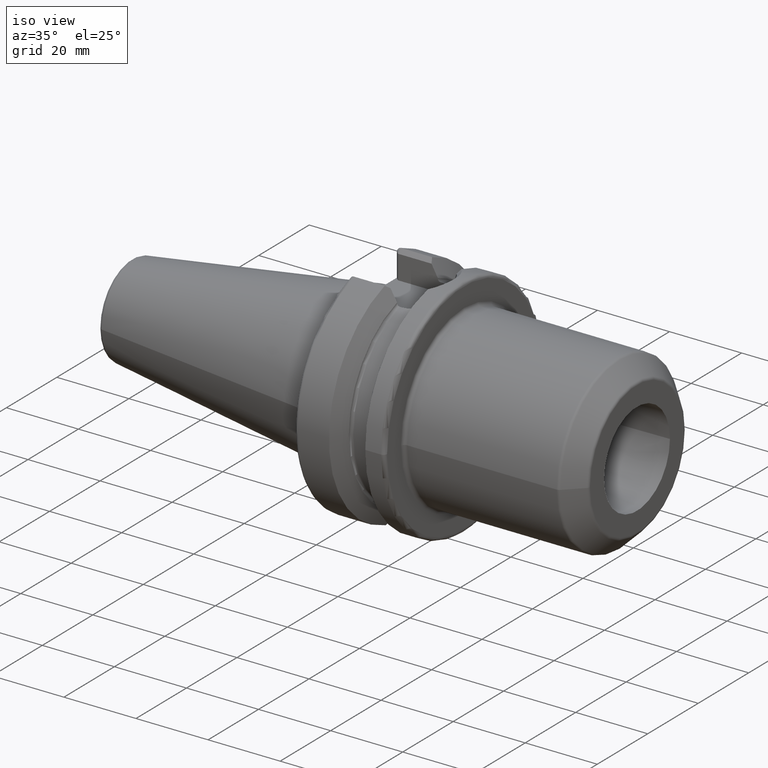
[diagram: clean part render]
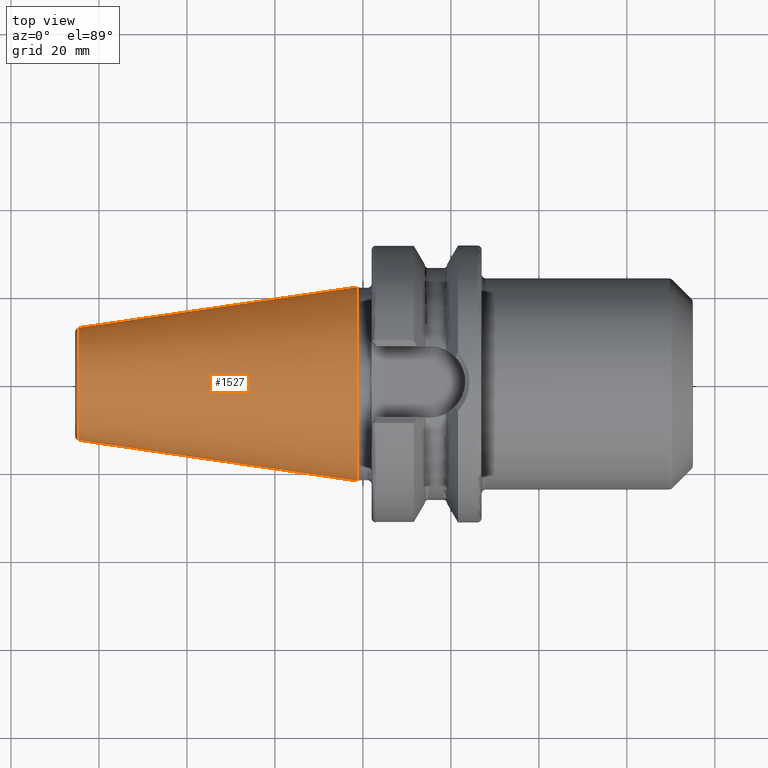
[diagram: tour spotlight — one face highlighted and labeled with its STEP entity id]
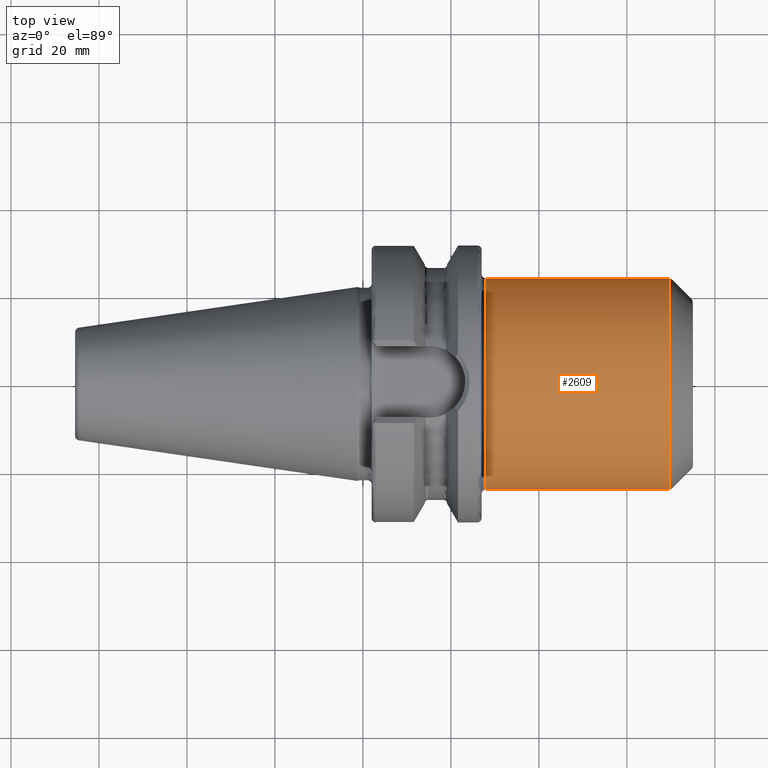
[diagram: tour spotlight — one face highlighted and labeled with its STEP entity id]
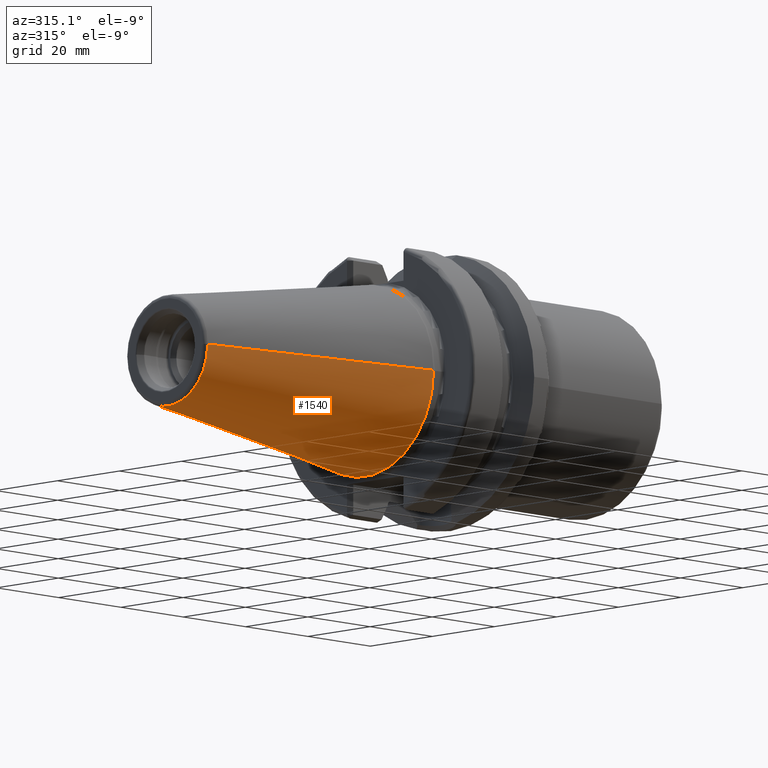
[diagram: tour spotlight — one face highlighted and labeled with its STEP entity id]
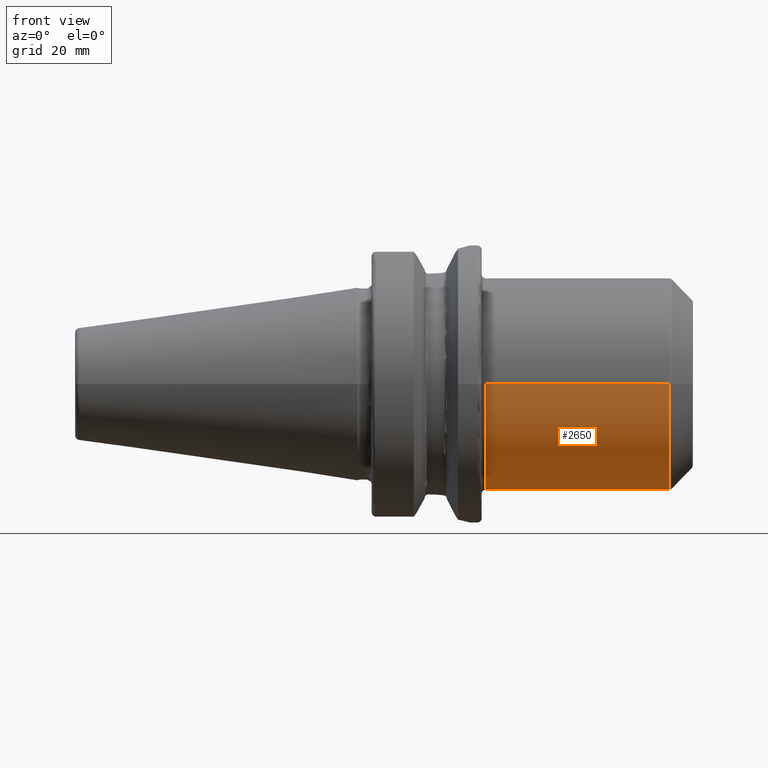
[diagram: tour spotlight — one face highlighted and labeled with its STEP entity id]
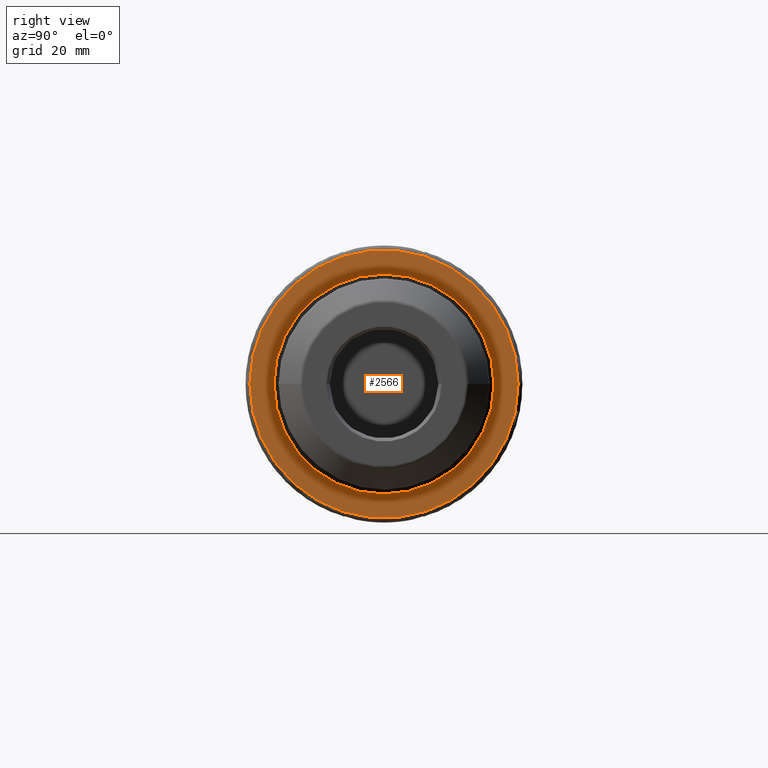
[diagram: tour spotlight — one face highlighted and labeled with its STEP entity id]
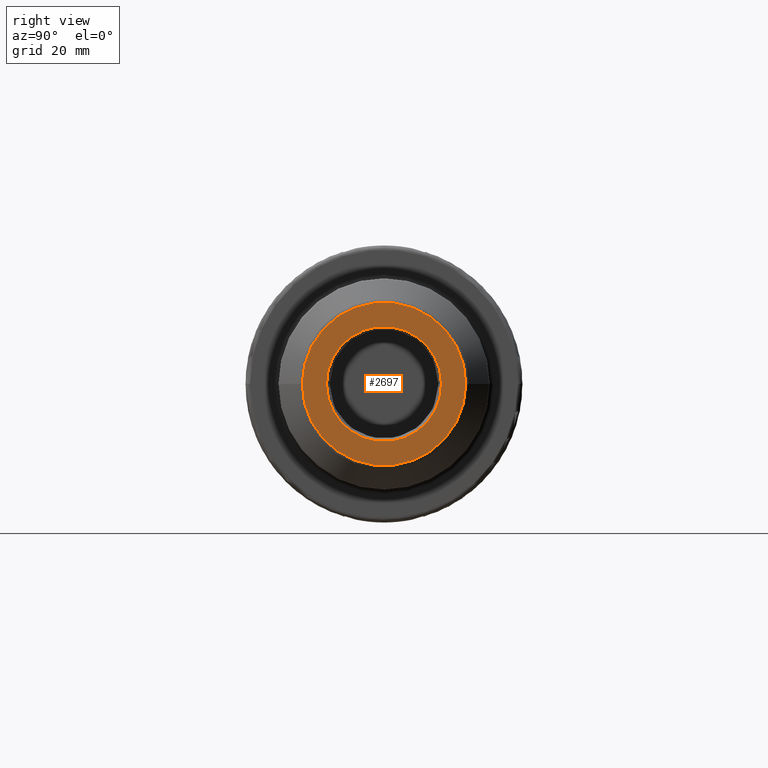
[diagram: tour spotlight — one face highlighted and labeled with its STEP entity id]
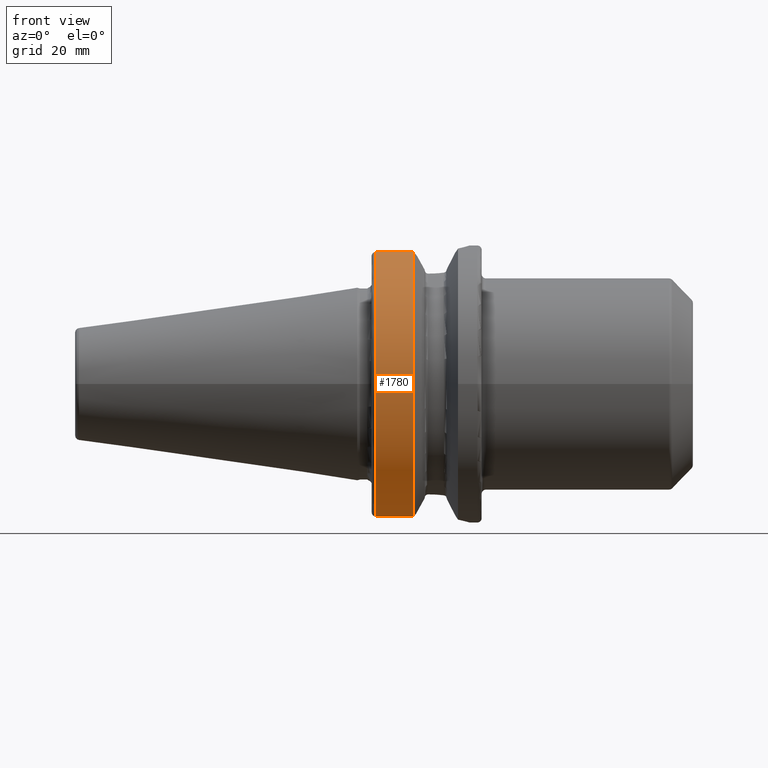
[diagram: tour spotlight — one face highlighted and labeled with its STEP entity id]
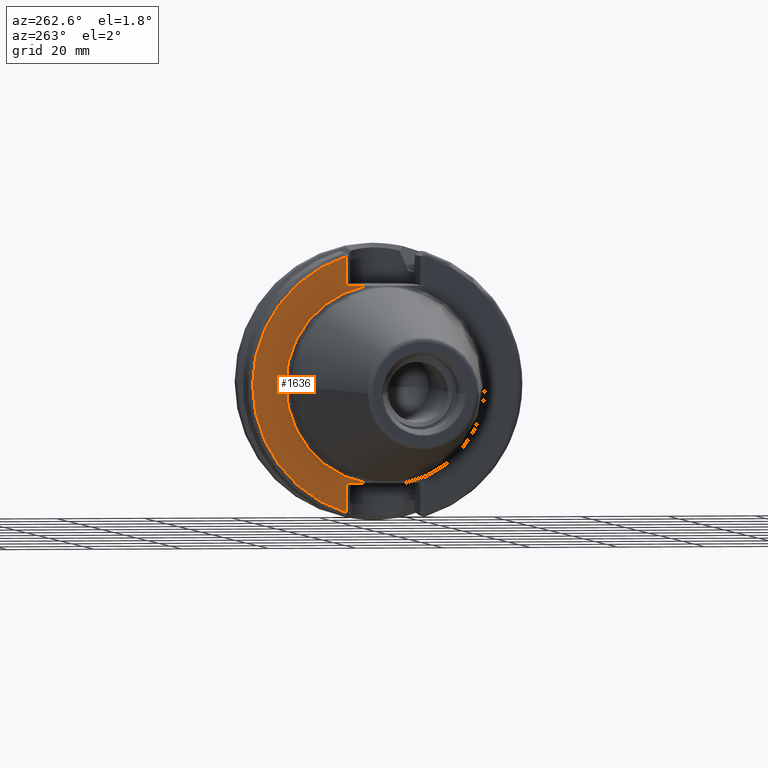
[diagram: tour spotlight — one face highlighted and labeled with its STEP entity id]
A machine part: a face-by-face anatomy tour. The part has 100 B-rep faces; the first image is the clean iso view, then the 8 largest visible faces are spotlighted one at a time (largest first), each with its STEP entity span.

Face 1 — top view, entity #1527. In plain terms, the highlighted conical surface has half-angle 8.298 deg.
Definition (entity closure, byte-faithful):
#37=CARTESIAN_POINT('',(-6.454431866917E1,0.E0,0.E0));
#38=DIRECTION('',(1.E0,0.E0,0.E0));
#39=DIRECTION('',(0.E0,1.E0,0.E0));
#40=AXIS2_PLACEMENT_3D('',#37,#38,#39);
#42=CARTESIAN_POINT('',(-1.266732031557E0,0.E0,0.E0));
#43=DIRECTION('',(1.E0,0.E0,0.E0));
#44=DIRECTION('',(0.E0,1.E0,0.E0));
#45=AXIS2_PLACEMENT_3D('',#42,#43,#44);
#47=DIRECTION('',(-9.895312636440E-1,-1.443186691705E-1,0.E0));
#48=VECTOR('',#47,6.394703124850E1);
#49=CARTESIAN_POINT('',(-1.266732031557E0,2.204025284980E1,0.E0));
#50=LINE('',#49,#48);
#51=DIRECTION('',(-9.895312636440E-1,1.443186691705E-1,0.E0));
#52=VECTOR('',#51,6.394703124850E1);
#53=CARTESIAN_POINT('',(-1.266732031557E0,-2.204025284980E1,0.E0));
#54=LINE('',#53,#52);
#1208=CARTESIAN_POINT('',(-6.454431866917E1,1.281150240261E1,0.E0));
#1210=VERTEX_POINT('',#1208);
#1212=CARTESIAN_POINT('',(-6.454431866917E1,-1.281150240261E1,0.E0));
#1214=VERTEX_POINT('',#1212);
#1427=CARTESIAN_POINT('',(-1.266732031557E0,2.204025284980E1,0.E0));
#1428=VERTEX_POINT('',#1427);
#1429=CARTESIAN_POINT('',(-1.266732031557E0,-2.204025284980E1,0.E0));
#1430=VERTEX_POINT('',#1429);
#1513=CARTESIAN_POINT('',(-3.290552535036E1,0.E0,0.E0));
#1514=DIRECTION('',(1.E0,0.E0,0.E0));
#1515=DIRECTION('',(0.E0,-1.E0,0.E0));
#1516=AXIS2_PLACEMENT_3D('',#1513,#1514,#1515);
#1517=CONICAL_SURFACE('',#1516,1.742587762621E1,8.297826828206E0);
#1519=ORIENTED_EDGE('',*,*,#1518,.F.);
#1521=ORIENTED_EDGE('',*,*,#1520,.T.);
#1523=ORIENTED_EDGE('',*,*,#1522,.T.);
#1524=ORIENTED_EDGE('',*,*,#1506,.F.);
#1525=EDGE_LOOP('',(#1519,#1521,#1523,#1524));
#1526=FACE_OUTER_BOUND('',#1525,.F.);
#1527=ADVANCED_FACE('',(#1526),#1517,.T.);
#41=CIRCLE('',#40,1.281150240261E1);
#46=CIRCLE('',#45,2.204025284980E1);
#1506=EDGE_CURVE('',#1210,#1214,#41,.T.);
#1518=EDGE_CURVE('',#1428,#1210,#50,.T.);
#1520=EDGE_CURVE('',#1428,#1430,#46,.T.);
#1522=EDGE_CURVE('',#1430,#1214,#54,.T.);

Face 2 — top view, entity #2609. In plain terms, the highlighted cylindrical surface (partial cylindrical patch) has radius 24 mm, axis along (1, 0, 0).
Definition (entity closure, byte-faithful):
#856=CARTESIAN_POINT('',(6.958578643763E1,0.E0,0.E0));
#857=DIRECTION('',(-1.E0,0.E0,0.E0));
#858=DIRECTION('',(0.E0,-1.E0,0.E0));
#859=AXIS2_PLACEMENT_3D('',#856,#857,#858);
#861=CARTESIAN_POINT('',(2.8E1,0.E0,0.E0));
#862=DIRECTION('',(1.E0,0.E0,0.E0));
#863=DIRECTION('',(0.E0,1.E0,0.E0));
#864=AXIS2_PLACEMENT_3D('',#861,#862,#863);
#881=DIRECTION('',(-1.E0,0.E0,5.174014328678E-13));
#882=VECTOR('',#881,4.158578643763E1);
#883=CARTESIAN_POINT('',(6.958578643763E1,2.4E1,-2.018824837688E-11));
#884=LINE('',#883,#882);
#890=DIRECTION('',(-1.E0,0.E0,-5.172645071689E-13));
#891=VECTOR('',#890,4.158578643763E1);
#892=CARTESIAN_POINT('',(6.958578643763E1,-2.4E1,2.018180394298E-11));
#893=LINE('',#892,#891);
#1447=CARTESIAN_POINT('',(2.8E1,-2.4E1,0.E0));
#1448=CARTESIAN_POINT('',(2.8E1,2.4E1,0.E0));
#1449=VERTEX_POINT('',#1447);
#1450=VERTEX_POINT('',#1448);
#1459=CARTESIAN_POINT('',(6.958578643763E1,2.4E1,0.E0));
#1460=CARTESIAN_POINT('',(6.958578643763E1,-2.4E1,0.E0));
#1461=VERTEX_POINT('',#1459);
#1462=VERTEX_POINT('',#1460);
#2595=CARTESIAN_POINT('',(2.46E1,0.E0,0.E0));
#2596=DIRECTION('',(1.E0,0.E0,0.E0));
#2597=DIRECTION('',(0.E0,-1.E0,0.E0));
#2598=AXIS2_PLACEMENT_3D('',#2595,#2596,#2597);
#2599=CYLINDRICAL_SURFACE('',#2598,2.4E1);
#2601=ORIENTED_EDGE('',*,*,#2600,.F.);
#2603=ORIENTED_EDGE('',*,*,#2602,.T.);
#2604=ORIENTED_EDGE('',*,*,#2589,.F.);
#2606=ORIENTED_EDGE('',*,*,#2605,.F.);
#2607=EDGE_LOOP('',(#2601,#2603,#2604,#2606));
#2608=FACE_OUTER_BOUND('',#2607,.F.);
#2609=ADVANCED_FACE('',(#2608),#2599,.T.);
#860=CIRCLE('',#859,2.4E1);
#865=CIRCLE('',#864,2.4E1);
#2589=EDGE_CURVE('',#1450,#1449,#865,.T.);
#2600=EDGE_CURVE('',#1462,#1461,#860,.T.);
#2602=EDGE_CURVE('',#1462,#1449,#893,.T.);
#2605=EDGE_CURVE('',#1461,#1450,#884,.T.);

Face 3 — auxiliary view, entity #1540. In plain terms, the highlighted conical surface has half-angle 8.298 deg.
Definition (entity closure, byte-faithful):
#32=CARTESIAN_POINT('',(-6.454431866917E1,0.E0,0.E0));
#33=DIRECTION('',(-1.E0,0.E0,0.E0));
#34=DIRECTION('',(0.E0,1.E0,0.E0));
#35=AXIS2_PLACEMENT_3D('',#32,#33,#34);
#47=DIRECTION('',(-9.895312636440E-1,-1.443186691705E-1,0.E0));
#48=VECTOR('',#47,6.394703124850E1);
#49=CARTESIAN_POINT('',(-1.266732031557E0,2.204025284980E1,0.E0));
#50=LINE('',#49,#48);
#51=DIRECTION('',(-9.895312636440E-1,1.443186691705E-1,0.E0));
#52=VECTOR('',#51,6.394703124850E1);
#53=CARTESIAN_POINT('',(-1.266732031557E0,-2.204025284980E1,0.E0));
#54=LINE('',#53,#52);
#55=CARTESIAN_POINT('',(-1.266732031557E0,0.E0,0.E0));
#56=DIRECTION('',(-1.E0,0.E0,0.E0));
#57=DIRECTION('',(0.E0,1.E0,0.E0));
#58=AXIS2_PLACEMENT_3D('',#55,#56,#57);
#1208=CARTESIAN_POINT('',(-6.454431866917E1,1.281150240261E1,0.E0));
#1210=VERTEX_POINT('',#1208);
#1212=CARTESIAN_POINT('',(-6.454431866917E1,-1.281150240261E1,0.E0));
#1214=VERTEX_POINT('',#1212);
#1427=CARTESIAN_POINT('',(-1.266732031557E0,2.204025284980E1,0.E0));
#1428=VERTEX_POINT('',#1427);
#1429=CARTESIAN_POINT('',(-1.266732031557E0,-2.204025284980E1,0.E0));
#1430=VERTEX_POINT('',#1429);
#1528=CARTESIAN_POINT('',(-3.290552535036E1,0.E0,0.E0));
#1529=DIRECTION('',(1.E0,0.E0,0.E0));
#1530=DIRECTION('',(0.E0,-1.E0,0.E0));
#1531=AXIS2_PLACEMENT_3D('',#1528,#1529,#1530);
#1532=CONICAL_SURFACE('',#1531,1.742587762621E1,8.297826828206E0);
#1533=ORIENTED_EDGE('',*,*,#1518,.T.);
#1534=ORIENTED_EDGE('',*,*,#1495,.T.);
#1535=ORIENTED_EDGE('',*,*,#1522,.F.);
#1537=ORIENTED_EDGE('',*,*,#1536,.F.);
#1538=EDGE_LOOP('',(#1533,#1534,#1535,#1537));
#1539=FACE_OUTER_BOUND('',#1538,.F.);
#1540=ADVANCED_FACE('',(#1539),#1532,.T.);
#36=CIRCLE('',#35,1.281150240261E1);
#59=CIRCLE('',#58,2.204025284980E1);
#1495=EDGE_CURVE('',#1210,#1214,#36,.T.);
#1518=EDGE_CURVE('',#1428,#1210,#50,.T.);
#1522=EDGE_CURVE('',#1430,#1214,#54,.T.);
#1536=EDGE_CURVE('',#1428,#1430,#59,.T.);

Face 4 — front view, entity #2650. In plain terms, the highlighted cylindrical surface (partial cylindrical patch) has radius 24 mm, axis along (1, 0, 0).
Definition (entity closure, byte-faithful):
#876=CARTESIAN_POINT('',(6.958578643763E1,0.E0,0.E0));
#877=DIRECTION('',(-1.E0,0.E0,0.E0));
#878=DIRECTION('',(0.E0,1.E0,0.E0));
#879=AXIS2_PLACEMENT_3D('',#876,#877,#878);
#881=DIRECTION('',(-1.E0,0.E0,5.174014328678E-13));
#882=VECTOR('',#881,4.158578643763E1);
#883=CARTESIAN_POINT('',(6.958578643763E1,2.4E1,-2.018824837688E-11));
#884=LINE('',#883,#882);
#885=CARTESIAN_POINT('',(2.8E1,0.E0,0.E0));
#886=DIRECTION('',(1.E0,0.E0,0.E0));
#887=DIRECTION('',(0.E0,-1.E0,0.E0));
#888=AXIS2_PLACEMENT_3D('',#885,#886,#887);
#890=DIRECTION('',(-1.E0,0.E0,-5.172645071689E-13));
#891=VECTOR('',#890,4.158578643763E1);
#892=CARTESIAN_POINT('',(6.958578643763E1,-2.4E1,2.018180394298E-11));
#893=LINE('',#892,#891);
#1447=CARTESIAN_POINT('',(2.8E1,-2.4E1,0.E0));
#1448=CARTESIAN_POINT('',(2.8E1,2.4E1,0.E0));
#1449=VERTEX_POINT('',#1447);
#1450=VERTEX_POINT('',#1448);
#1459=CARTESIAN_POINT('',(6.958578643763E1,2.4E1,0.E0));
#1460=CARTESIAN_POINT('',(6.958578643763E1,-2.4E1,0.E0));
#1461=VERTEX_POINT('',#1459);
#1462=VERTEX_POINT('',#1460);
#2639=CARTESIAN_POINT('',(2.46E1,0.E0,0.E0));
#2640=DIRECTION('',(1.E0,0.E0,0.E0));
#2641=DIRECTION('',(0.E0,-1.E0,0.E0));
#2642=AXIS2_PLACEMENT_3D('',#2639,#2640,#2641);
#2643=CYLINDRICAL_SURFACE('',#2642,2.4E1);
#2644=ORIENTED_EDGE('',*,*,#2630,.F.);
#2645=ORIENTED_EDGE('',*,*,#2605,.T.);
#2646=ORIENTED_EDGE('',*,*,#2575,.F.);
#2647=ORIENTED_EDGE('',*,*,#2602,.F.);
#2648=EDGE_LOOP('',(#2644,#2645,#2646,#2647));
#2649=FACE_OUTER_BOUND('',#2648,.F.);
#2650=ADVANCED_FACE('',(#2649),#2643,.T.);
#880=CIRCLE('',#879,2.4E1);
#889=CIRCLE('',#888,2.4E1);
#2575=EDGE_CURVE('',#1449,#1450,#889,.T.);
#2602=EDGE_CURVE('',#1462,#1449,#893,.T.);
#2605=EDGE_CURVE('',#1461,#1450,#884,.T.);
#2630=EDGE_CURVE('',#1461,#1462,#880,.T.);

Face 5 — right view, entity #2566. In plain terms, the highlighted planar face has unit normal (1, 0, 0).
Definition (entity closure, byte-faithful):
#816=CARTESIAN_POINT('',(2.7E1,0.E0,0.E0));
#817=DIRECTION('',(1.E0,0.E0,0.E0));
#818=DIRECTION('',(0.E0,1.E0,0.E0));
#819=AXIS2_PLACEMENT_3D('',#816,#817,#818);
#831=CARTESIAN_POINT('',(2.7E1,0.E0,0.E0));
#832=DIRECTION('',(-1.E0,0.E0,0.E0));
#833=DIRECTION('',(0.E0,1.E0,0.E0));
#834=AXIS2_PLACEMENT_3D('',#831,#832,#833);
#836=CARTESIAN_POINT('',(2.7E1,0.E0,0.E0));
#837=DIRECTION('',(1.E0,0.E0,0.E0));
#838=DIRECTION('',(0.E0,-1.E0,0.E0));
#839=AXIS2_PLACEMENT_3D('',#836,#837,#838);
#841=CARTESIAN_POINT('',(2.7E1,0.E0,0.E0));
#842=DIRECTION('',(1.E0,0.E0,0.E0));
#843=DIRECTION('',(0.E0,1.E0,0.E0));
#844=AXIS2_PLACEMENT_3D('',#841,#842,#843);
#1342=CARTESIAN_POINT('',(2.7E1,3.04875E1,0.E0));
#1343=VERTEX_POINT('',#1342);
#1344=CARTESIAN_POINT('',(2.7E1,-3.04875E1,0.E0));
#1345=VERTEX_POINT('',#1344);
#1443=CARTESIAN_POINT('',(2.7E1,-2.5E1,-2.832769448824E-14));
#1444=CARTESIAN_POINT('',(2.7E1,2.5E1,1.416384724412E-14));
#1445=VERTEX_POINT('',#1443);
#1446=VERTEX_POINT('',#1444);
#2551=CARTESIAN_POINT('',(2.7E1,0.E0,0.E0));
#2552=DIRECTION('',(1.E0,0.E0,0.E0));
#2553=DIRECTION('',(0.E0,-1.E0,0.E0));
#2554=AXIS2_PLACEMENT_3D('',#2551,#2552,#2553);
#2555=PLANE('',#2554);
#2556=ORIENTED_EDGE('',*,*,#2546,.T.);
#2557=ORIENTED_EDGE('',*,*,#2530,.F.);
#2558=EDGE_LOOP('',(#2556,#2557));
#2559=FACE_OUTER_BOUND('',#2558,.F.);
#2561=ORIENTED_EDGE('',*,*,#2560,.T.);
#2563=ORIENTED_EDGE('',*,*,#2562,.T.);
#2564=EDGE_LOOP('',(#2561,#2563));
#2565=FACE_BOUND('',#2564,.F.);
#2566=ADVANCED_FACE('',(#2559,#2565),#2555,.T.);
#820=CIRCLE('',#819,3.04875E1);
#835=CIRCLE('',#834,3.04875E1);
#840=CIRCLE('',#839,2.5E1);
#845=CIRCLE('',#844,2.5E1);
#2530=EDGE_CURVE('',#1343,#1345,#820,.T.);
#2546=EDGE_CURVE('',#1343,#1345,#835,.T.);
#2560=EDGE_CURVE('',#1445,#1446,#840,.T.);
#2562=EDGE_CURVE('',#1446,#1445,#845,.T.);

Face 6 — right view, entity #2697. In plain terms, the highlighted planar face has unit normal (1, 0, 0).
Definition (entity closure, byte-faithful):
#913=CARTESIAN_POINT('',(7.5E1,0.E0,0.E0));
#914=DIRECTION('',(1.E0,0.E0,0.E0));
#915=DIRECTION('',(0.E0,1.E0,0.E0));
#916=AXIS2_PLACEMENT_3D('',#913,#914,#915);
#918=CARTESIAN_POINT('',(7.5E1,0.E0,0.E0));
#919=DIRECTION('',(1.E0,0.E0,0.E0));
#920=DIRECTION('',(0.E0,-1.E0,0.E0));
#921=AXIS2_PLACEMENT_3D('',#918,#919,#920);
#923=CARTESIAN_POINT('',(7.5E1,0.E0,0.E0));
#924=DIRECTION('',(1.E0,0.E0,0.E0));
#925=DIRECTION('',(0.E0,-1.E0,-3.283921760802E-10));
#926=AXIS2_PLACEMENT_3D('',#923,#924,#925);
#928=CARTESIAN_POINT('',(7.5E1,0.E0,0.E0));
#929=DIRECTION('',(1.E0,0.E0,0.E0));
#930=DIRECTION('',(0.E0,1.E0,3.283917434362E-10));
#931=AXIS2_PLACEMENT_3D('',#928,#929,#930);
#1439=CARTESIAN_POINT('',(7.5E1,1.30735E1,0.E0));
#1440=VERTEX_POINT('',#1439);
#1441=CARTESIAN_POINT('',(7.5E1,-1.30735E1,0.E0));
#1442=VERTEX_POINT('',#1441);
#1451=CARTESIAN_POINT('',(7.5E1,-1.858578643763E1,-6.103426852414E-9));
#1452=CARTESIAN_POINT('',(7.5E1,1.858578643763E1,6.103416322565E-9));
#1453=VERTEX_POINT('',#1451);
#1454=VERTEX_POINT('',#1452);
#2681=CARTESIAN_POINT('',(7.5E1,0.E0,0.E0));
#2682=DIRECTION('',(1.E0,0.E0,0.E0));
#2683=DIRECTION('',(0.E0,-1.E0,0.E0));
#2684=AXIS2_PLACEMENT_3D('',#2681,#2682,#2683);
#2685=PLANE('',#2684);
#2686=ORIENTED_EDGE('',*,*,#2671,.F.);
#2688=ORIENTED_EDGE('',*,*,#2687,.F.);
#2689=EDGE_LOOP('',(#2686,#2688));
#2690=FACE_OUTER_BOUND('',#2689,.F.);
#2692=ORIENTED_EDGE('',*,*,#2691,.T.);
#2694=ORIENTED_EDGE('',*,*,#2693,.T.);
#2695=EDGE_LOOP('',(#2692,#2694));
#2696=FACE_BOUND('',#2695,.F.);
#2697=ADVANCED_FACE('',(#2690,#2696),#2685,.T.);
#917=CIRCLE('',#916,1.30735E1);
#922=CIRCLE('',#921,1.30735E1);
#927=CIRCLE('',#926,1.858578643763E1);
#932=CIRCLE('',#931,1.858578643763E1);
#2671=EDGE_CURVE('',#1453,#1454,#927,.T.);
#2687=EDGE_CURVE('',#1454,#1453,#932,.T.);
#2691=EDGE_CURVE('',#1440,#1442,#917,.T.);
#2693=EDGE_CURVE('',#1442,#1440,#922,.T.);

Face 7 — front view, entity #1780. In plain terms, the highlighted cylindrical surface (partial cylindrical patch) has radius 31.4875 mm, axis along (1, 0, 0).
Definition (entity closure, byte-faithful):
#210=CARTESIAN_POINT('',(1.157272253103E1,0.E0,0.E0));
#211=DIRECTION('',(1.E0,0.E0,0.E0));
#212=DIRECTION('',(0.E0,-2.983189831898E-1,9.544662300305E-1));
#213=AXIS2_PLACEMENT_3D('',#210,#211,#212);
#215=DIRECTION('',(9.999999999998E-1,-3.572441507671E-7,4.802508939409E-7));
#216=VECTOR('',#215,8.572722533299E0);
#217=CARTESIAN_POINT('',(2.999999997734E0,-9.052776400559E0,-3.015808496187E1));
#218=LINE('',#217,#216);
#219=CARTESIAN_POINT('',(3.E0,0.E0,0.E0));
#220=DIRECTION('',(-1.E0,0.E0,0.E0));
#221=DIRECTION('',(0.E0,-2.875039130802E-1,-9.577794631143E-1));
#222=AXIS2_PLACEMENT_3D('',#219,#220,#221);
#224=DIRECTION('',(-9.999999999911E-1,2.496639374553E-6,3.395432034657E-6));
#225=VECTOR('',#224,8.572722551500E0);
#226=CARTESIAN_POINT('',(1.157272253103E1,-9.393318983190E0,3.005375541808E1));
#227=LINE('',#226,#225);
#606=CARTESIAN_POINT('',(2.999999997734E0,-9.052776400559E0,-3.015808496187E1));
#1378=CARTESIAN_POINT('',(1.157272253103E1,-9.393318983190E0,3.005375541808E1));
#1379=CARTESIAN_POINT('',(1.157272253103E1,-9.052779463114E0,
-3.015808084481E1));
#1380=VERTEX_POINT('',#1378);
#1381=VERTEX_POINT('',#1379);
#1394=CARTESIAN_POINT('',(3.E0,-9.393347656107E0,3.005374645633E1));
#1395=VERTEX_POINT('',#1394);
#1416=VERTEX_POINT('',#606);
#1766=CARTESIAN_POINT('',(-7.002E1,0.E0,0.E0));
#1767=DIRECTION('',(1.E0,0.E0,0.E0));
#1768=DIRECTION('',(0.E0,-1.E0,0.E0));
#1769=AXIS2_PLACEMENT_3D('',#1766,#1767,#1768);
#1770=CYLINDRICAL_SURFACE('',#1769,3.14875E1);
#1771=ORIENTED_EDGE('',*,*,#1757,.T.);
#1773=ORIENTED_EDGE('',*,*,#1772,.F.);
#1775=ORIENTED_EDGE('',*,*,#1774,.T.);
#1777=ORIENTED_EDGE('',*,*,#1776,.F.);
#1778=EDGE_LOOP('',(#1771,#1773,#1775,#1777));
#1779=FACE_OUTER_BOUND('',#1778,.F.);
#1780=ADVANCED_FACE('',(#1779),#1770,.T.);
#214=CIRCLE('',#213,3.14875E1);
#223=CIRCLE('',#222,3.14875E1);
#1757=EDGE_CURVE('',#1380,#1381,#214,.T.);
#1772=EDGE_CURVE('',#1416,#1381,#218,.T.);
#1774=EDGE_CURVE('',#1416,#1395,#223,.T.);
#1776=EDGE_CURVE('',#1380,#1395,#227,.T.);

Face 8 — auxiliary view, entity #1636. In plain terms, the highlighted planar face has unit normal (1, 0, 0).
Definition (entity closure, byte-faithful):
#96=CARTESIAN_POINT('',(2.E0,0.E0,0.E0));
#97=DIRECTION('',(-1.E0,0.E0,0.E0));
#98=DIRECTION('',(0.E0,1.E0,0.E0));
#99=AXIS2_PLACEMENT_3D('',#96,#97,#98);
#127=DIRECTION('',(2.137863157138E-6,2.138092596513E-6,9.999999999954E-1));
#128=VECTOR('',#127,6.649288203884E0);
#129=CARTESIAN_POINT('',(1.999985784732E0,9.094985783206E0,-2.909928820385E1));
#130=LINE('',#129,#128);
#131=DIRECTION('',(-4.462834027332E-6,-4.463945839096E-6,9.999999999801E-1));
#132=VECTOR('',#131,6.649296399125E0);
#133=CARTESIAN_POINT('',(2.E0,9.095E0,2.245E1));
#134=LINE('',#133,#132);
#592=CARTESIAN_POINT('',(2.E0,0.E0,0.E0));
#593=DIRECTION('',(-1.E0,0.E0,0.E0));
#594=DIRECTION('',(0.E0,2.983190614061E-1,9.544662055839E-1));
#595=AXIS2_PLACEMENT_3D('',#592,#593,#594);
#688=DIRECTION('',(0.E0,1.E0,0.E0));
#689=VECTOR('',#688,4.706022328605E0);
#690=CARTESIAN_POINT('',(2.E0,4.388977671395E0,2.245E1));
#691=LINE('',#690,#689);
#709=CARTESIAN_POINT('',(2.E0,0.E0,0.E0));
#710=DIRECTION('',(1.E0,0.E0,0.E0));
#711=DIRECTION('',(0.E0,1.E0,0.E0));
#712=AXIS2_PLACEMENT_3D('',#709,#710,#711);
#746=DIRECTION('',(0.E0,-1.E0,0.E0));
#747=VECTOR('',#746,4.706022328605E0);
#748=CARTESIAN_POINT('',(2.E0,9.095E0,-2.245E1));
#749=LINE('',#748,#747);
#1280=CARTESIAN_POINT('',(2.E0,2.2875E1,0.E0));
#1282=VERTEX_POINT('',#1280);
#1350=CARTESIAN_POINT('',(2.E0,4.388977671395E0,2.245E1));
#1351=VERTEX_POINT('',#1350);
#1358=CARTESIAN_POINT('',(2.E0,4.388977671395E0,-2.245E1));
#1359=VERTEX_POINT('',#1358);
#1396=CARTESIAN_POINT('',(2.E0,9.095027762300E0,2.909928051090E1));
#1398=VERTEX_POINT('',#1396);
#1400=CARTESIAN_POINT('',(2.E0,9.095E0,2.245E1));
#1401=VERTEX_POINT('',#1400);
#1410=CARTESIAN_POINT('',(1.999985784732E0,9.094985783206E0,-2.909928820385E1));
#1411=CARTESIAN_POINT('',(2.E0,9.095E0,-2.245E1));
#1412=VERTEX_POINT('',#1410);
#1413=VERTEX_POINT('',#1411);
#1616=CARTESIAN_POINT('',(2.E0,0.E0,0.E0));
#1617=DIRECTION('',(1.E0,0.E0,0.E0));
#1618=DIRECTION('',(0.E0,-1.E0,0.E0));
#1619=AXIS2_PLACEMENT_3D('',#1616,#1617,#1618);
#1620=PLANE('',#1619);
#1622=ORIENTED_EDGE('',*,*,#1621,.F.);
#1624=ORIENTED_EDGE('',*,*,#1623,.F.);
#1626=ORIENTED_EDGE('',*,*,#1625,.F.);
#1628=ORIENTED_EDGE('',*,*,#1627,.F.);
#1630=ORIENTED_EDGE('',*,*,#1629,.F.);
#1631=ORIENTED_EDGE('',*,*,#1602,.T.);
#1633=ORIENTED_EDGE('',*,*,#1632,.F.);
#1634=EDGE_LOOP('',(#1622,#1624,#1626,#1628,#1630,#1631,#1633));
#1635=FACE_OUTER_BOUND('',#1634,.F.);
#1636=ADVANCED_FACE('',(#1635),#1620,.F.);
#100=CIRCLE('',#99,2.2875E1);
#596=CIRCLE('',#595,3.04875E1);
#713=CIRCLE('',#712,2.2875E1);
#1602=EDGE_CURVE('',#1282,#1359,#100,.T.);
#1621=EDGE_CURVE('',#1412,#1413,#130,.T.);
#1623=EDGE_CURVE('',#1398,#1412,#596,.T.);
#1625=EDGE_CURVE('',#1401,#1398,#134,.T.);
#1627=EDGE_CURVE('',#1351,#1401,#691,.T.);
#1629=EDGE_CURVE('',#1282,#1351,#713,.T.);
#1632=EDGE_CURVE('',#1413,#1359,#749,.T.);